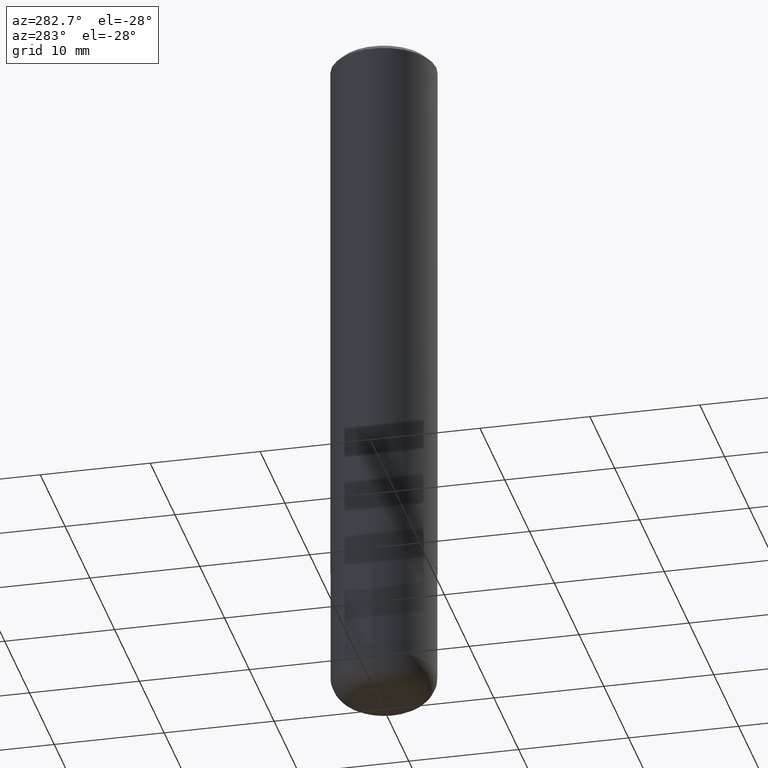
[diagram: clean part render]
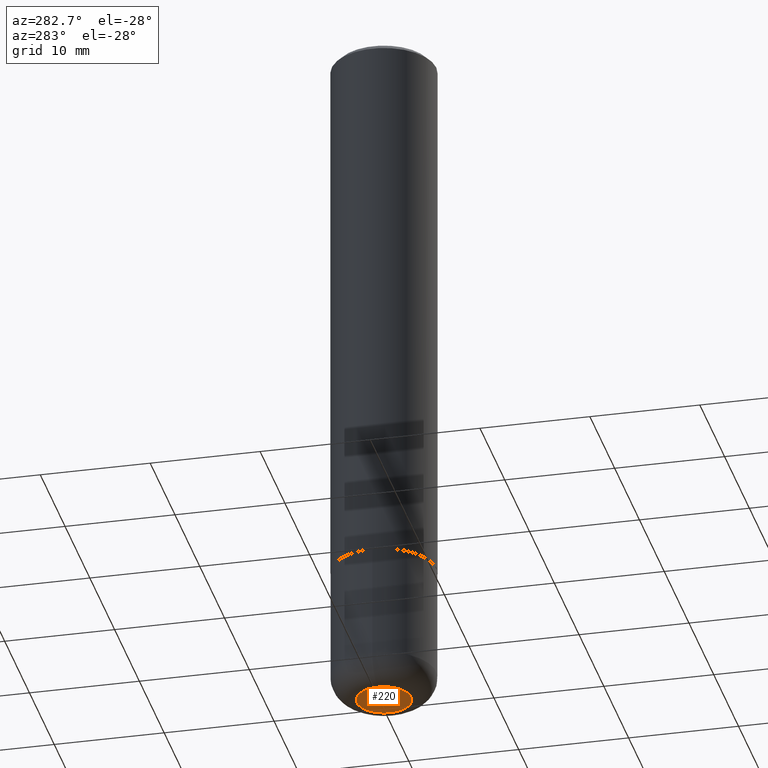
[diagram: same view with one face highlighted and labeled with its STEP entity id]
A machine part, auxiliary view. The second image highlights one B-rep face of the part: STEP entity #220.
In plain terms, the highlighted planar face has unit normal (0, -0, -1).
Its self-contained STEP definition (entity closure, byte-faithful):
#8 = DIRECTION ( 'NONE',  ( -2.445468806185136597E-29, 3.491481338843145583E-15, 1.000000000000000000 ) ) ;
#9 = CIRCLE ( 'NONE', #328, 0.09750000000000003109 ) ;
#14 = DIRECTION ( 'NONE',  ( 1.000000000000000000, -6.982962677686265922E-15, 0.000000000000000000 ) ) ;
#25 = AXIS2_PLACEMENT_3D ( 'NONE', #299, #44, #165 ) ;
#44 = DIRECTION ( 'NONE',  ( 2.438088387897960049E-29, -3.491481338843145188E-15, -1.000000000000000000 ) ) ;
#56 = AXIS2_PLACEMENT_3D ( 'NONE', #85, #376, #272 ) ;
#79 = CARTESIAN_POINT ( 'NONE',  ( 0.09750000000000003109, -9.409542208182275000E-15, -2.500000000000000000 ) ) ;
#85 = CARTESIAN_POINT ( 'NONE',  ( 6.113672015462842613E-29, -8.728703347107864943E-15, -2.500000000000000000 ) ) ;
#134 = FACE_OUTER_BOUND ( 'NONE', #355, .T. ) ;
#165 = DIRECTION ( 'NONE',  ( -1.000000000000000000, 6.982962677686265922E-15, -4.876176775795935793E-29 ) ) ;
#192 = CARTESIAN_POINT ( 'NONE',  ( -0.09750000000000003109, -7.559063288401780041E-15, -2.500000000000000000 ) ) ;
#193 = VERTEX_POINT ( 'NONE', #79 ) ;
#196 = PLANE ( 'NONE',  #25 ) ;
#198 = CARTESIAN_POINT ( 'NONE',  ( 6.113672015462842613E-29, -8.728703347107864943E-15, -2.500000000000000000 ) ) ;
#220 = ADVANCED_FACE ( 'NONE', ( #134 ), #196, .T. ) ;
#272 = DIRECTION ( 'NONE',  ( 1.000000000000000000, -6.982962677686265922E-15, 0.000000000000000000 ) ) ;
#284 = EDGE_CURVE ( 'NONE', #193, #288, #9, .T. ) ;
#288 = VERTEX_POINT ( 'NONE', #192 ) ;
#299 = CARTESIAN_POINT ( 'NONE',  ( 6.113672015462842613E-29, -8.728703347107864943E-15, -2.500000000000000000 ) ) ;
#328 = AXIS2_PLACEMENT_3D ( 'NONE', #198, #8, #14 ) ;
#330 = EDGE_CURVE ( 'NONE', #288, #193, #365, .T. ) ;
#355 = EDGE_LOOP ( 'NONE', ( #417, #382 ) ) ;
#365 = CIRCLE ( 'NONE', #56, 0.09750000000000003109 ) ;
#376 = DIRECTION ( 'NONE',  ( -2.445468806185136597E-29, 3.491481338843145583E-15, 1.000000000000000000 ) ) ;
#382 = ORIENTED_EDGE ( 'NONE', *, *, #330, .F. ) ;
#417 = ORIENTED_EDGE ( 'NONE', *, *, #284, .F. ) ;